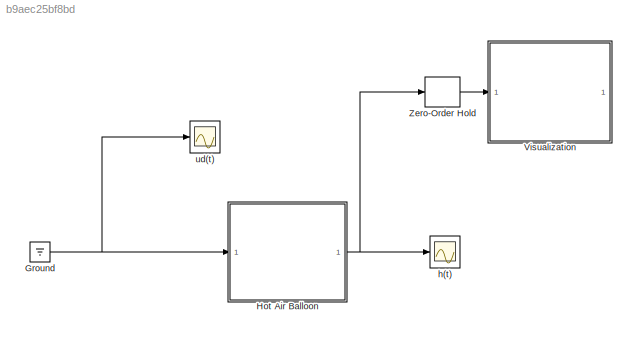
MODEL slx_b9aec25bf8bd
KIND model
CONFIG AbsTol = auto
CONFIG EnableMultiTasking = off
CONFIG FixedStep = 0.01
CONFIG MaxStep = auto
CONFIG MinStep = auto
CONFIG RelTol = 1e-3
CONFIG SampleTimeConstraint = Unconstrained
CONFIG SolverName = ode3
CONFIG StartTime = 0.0
CONFIG StopTime = 600
BLOCK [Ground] Ground
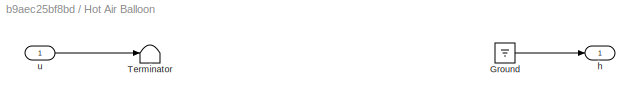
BLOCK [SubSystem] Hot Air Balloon
BLOCK [Ground] Hot Air Balloon/Ground
BLOCK [Terminator] Hot Air Balloon/Terminator
BLOCK [Outport] Hot Air Balloon/h
  NameLocation = top
BLOCK [Inport] Hot Air Balloon/u
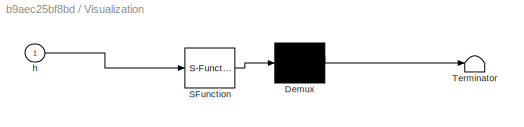
BLOCK [SubSystem] Visualization
  ErrorFcn = Stateflow.Translate.translate
  PermitHierarchicalResolution = ExplicitOnly
  SFBlockType = MATLAB Function
  TreatAsAtomicUnit = on
BLOCK [Demux] Visualization/ Demux 
  Outputs = 1
BLOCK [S-Function] Visualization/ SFunction 
  EnableBusSupport = on
  FunctionName = sf_sfun
  PortCounts = [1 1]
  SFcnIsStateOwnerBlock = off
  SFunctionDeploymentMode = off
  Tag = Stateflow S-Function 3
BLOCK [Terminator] Visualization/ Terminator 
BLOCK [Inport] Visualization/h
BLOCK [ZeroOrderHold] Zero-Order Hold
  SampleTime = 2
BLOCK [Scope] h(t)
  Floating = off
  NumInputPorts = 1
  ScopeSpecificationString = Simulink.scopes.TimeScopeBlockCfg('CurrentConfiguration', extmgr.ConfigurationSet(extmgr.Configuration('Core','General UI',true),extmgr.Configuration('Core','Source UI',true),extmgr.Configuration('Sources','WiredSimulink',true),extmgr.Configuration('Visuals','Time Domain',true,'SerializedDisplays',{struct('MinYLimReal','-0.0039','MaxYLimReal','0.03512','YLabelReal','','MinYLimMag','0.00000','MaxYL...<+1362ch>
BLOCK [Scope] ud(t)
  Floating = off
  NumInputPorts = 1
  ScopeSpecificationString = Simulink.scopes.TimeScopeBlockCfg('CurrentConfiguration', extmgr.ConfigurationSet(extmgr.Configuration('Core','General UI',true),extmgr.Configuration('Core','Source UI',true),extmgr.Configuration('Sources','WiredSimulink',true,'DataLoggingVariableName','ScopeData2'),extmgr.Configuration('Visuals','Time Domain',true,'SerializedDisplays',{struct('MinYLimReal','-0.00036','MaxYLimReal','0.00354','YLab...<+1409ch>
NET Ground:1 -> Hot Air Balloon:1, ud(t):1
LINE Hot Air Balloon/Ground:1 -> Hot Air Balloon/h:1
LINE Hot Air Balloon/u:1 -> Hot Air Balloon/Terminator:1
NET Hot Air Balloon:1 -> Zero-Order Hold:1, h(t):1
LINE Zero-Order Hold:1 -> Visualization:1
note: NET lines group one-source signal fan-out (src -> all destinations, sorted); 1:1 wires keep LINE
CHART Visualization states=1 transitions=1
  STATE_LABEL 'eML_blk_kernel()'
  STATE_LABEL 'SCRIPT:\nfunction fcn(h)\n\nsf = 2.5; % scale factor\n% balloon\n    Xballoon = sf*[ 0 ; 0.6 ; 2.2 ; 3 ; 3 ; 2.2 ; 1.2 ; 0 ; -1.2 ; -2.2 ; -3 ; -3 ; -2.2 ; -0.6 ];\n    Yballoon = sf*[ 1.2; 2; 3 ; 4 ; 5 ; 6; 6.4 ; 6.6 ; 6.4 ; 6 ; 5 ; 4 ; 3 ; 2 ]; \n\n% basket\n    Xbasket = sf*[ 0.6 ; 0.6 ; -0.6 ; -0.6 ];\n    Ybasket = sf*[ 0 ; 0.7 ; 0.7 ; 0 ];\n    \n% cables\n    Xcable1 = sf*[ 0.6 ; 0.6 ];\n    Ycable1 = sf...<+1154ch>'
CHART  states=0 transitions=0
